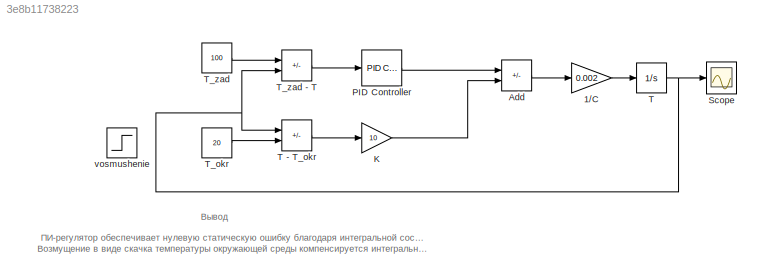
MODEL slx_3e8b11738223
KIND model
CONFIG AbsTol = auto
CONFIG EnableMultiTasking = off
CONFIG FixedStep = auto
CONFIG MaxStep = auto
CONFIG MinStep = auto
CONFIG RelTol = 1e-3
CONFIG SampleTimeConstraint = Unconstrained
CONFIG SolverName = VariableStepAuto
CONFIG StartTime = 0.0
CONFIG StopTime = 500
BLOCK [Gain] 1//C
  Gain = 0.002
BLOCK [Sum] Add
  IconShape = rectangular
  Inputs = +-
BLOCK [Gain] K
  Gain = 10
BLOCK [Reference] PID Controller  REF=slpidlib/PID Controller
  LibrarySourceBlock = simulink/Continuous/PID Controller
  SourceBlock = slpidlib/PID Controller
  SourceType = PID 1dof
BLOCK [Scope] Scope
  Floating = off
  NumInputPorts = 1
  ScopeSpecificationString = Simulink.scopes.TimeScopeBlockCfg('CurrentConfiguration', extmgr.ConfigurationSet(extmgr.Configuration('Core','General UI',true),extmgr.Configuration('Core','Source UI',true),extmgr.Configuration('Sources','WiredSimulink',true),extmgr.Configuration('Visuals','Time Domain',true,'SerializedDisplays',{struct('MinYLimReal','10.00039','MaxYLimReal','109.99645','YLabelReal','','MinYLimMag','10.00039','M...<+1448ch>
BLOCK [Integrator] T
  InitialCondition = 20
BLOCK [Sum] T - T_okr
  IconShape = rectangular
  Inputs = +-
BLOCK [Constant] T_okr
  Value = 20
BLOCK [Constant] T_zad
  Value = 100
BLOCK [Sum] T_zad - T
  IconShape = rectangular
  Inputs = +-
BLOCK [Step] vosmushenie
  After = 5
  Before = 20
  SampleTime = 0
  Time = 200
ANNOTATION (root): Вывод
ANNOTATION (root): ПИ-регулятор обеспечивает нулевую статическую ошибку благодаря интегральной составляющей. Возмущение в виде скачка температуры окружающей среды компенсируется интегральной составляющей, что подтверждает эффективность ПИ-регулятора для данной задачи
LINE 1//C:1 -> T:1
LINE Add:1 -> 1//C:1
LINE K:1 -> Add:2
LINE PID Controller:1 -> Add:1
LINE T - T_okr:1 -> K:1
NET T:1 -> Scope:1, T - T_okr:1, T_zad - T:2
LINE T_okr:1 -> T - T_okr:2
LINE T_zad - T:1 -> PID Controller:1
LINE T_zad:1 -> T_zad - T:1
note: NET lines group one-source signal fan-out (src -> all destinations, sorted); 1:1 wires keep LINE
